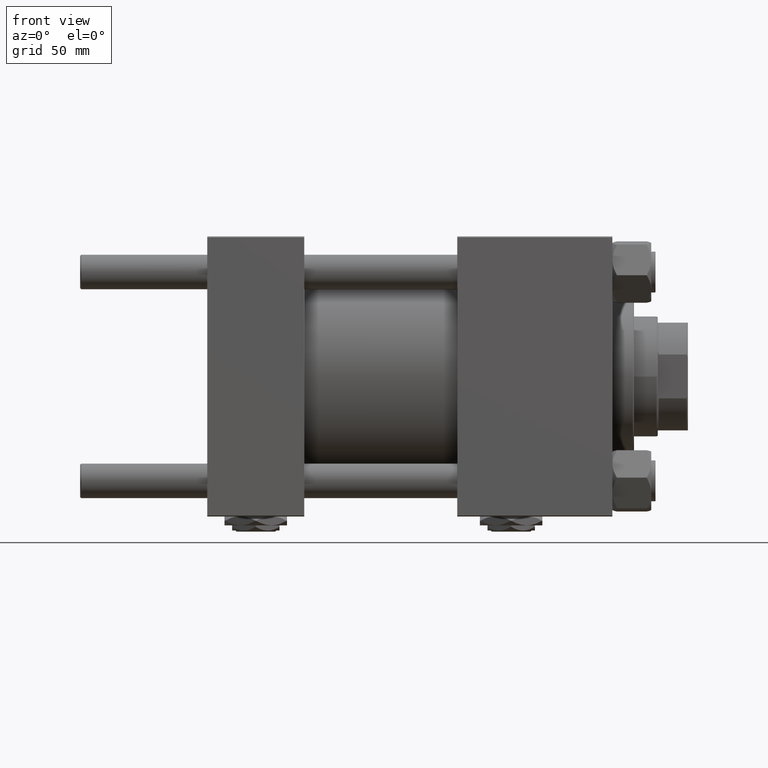
[diagram: clean part render]
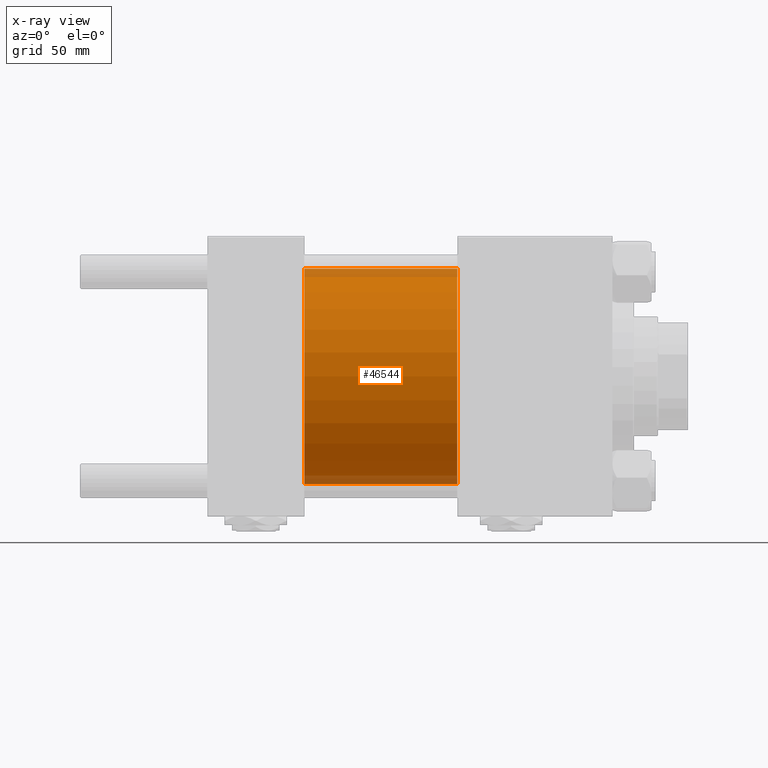
[diagram: x-ray — body ghosted, one internal face saturated and labeled with its STEP entity id]
A machine part, front view, then the same camera in x-ray: the body is ghosted and one INTERNAL B-rep face — a face not visible from any outside direction — is saturated and labeled: STEP entity #46544.
In plain terms, the highlighted cylindrical surface (partial cylindrical patch) has radius 50 mm, axis along (-1, -0, -0).
Its self-contained STEP definition (entity closure, byte-faithful):
#495 = CIRCLE ( 'NONE', #30165, 50.00000000000000000 ) ;
#2635 = ORIENTED_EDGE ( 'NONE', *, *, #49078, .T. ) ;
#2639 = VERTEX_POINT ( 'NONE', #26550 ) ;
#3754 = CARTESIAN_POINT ( 'NONE',  ( 115.9999999999999858, 0.000000000000000000, 0.000000000000000000 ) ) ;
#4637 = CARTESIAN_POINT ( 'NONE',  ( 115.9999999999999858, 0.000000000000000000, 50.00000000000000000 ) ) ;
#4969 = EDGE_LOOP ( 'NONE', ( #29081, #2635, #19232, #7942 ) ) ;
#5120 = AXIS2_PLACEMENT_3D ( 'NONE', #34658, #47392, #27204 ) ;
#6209 = CARTESIAN_POINT ( 'NONE',  ( 115.9999999999999858, 6.123233995736766085E-15, -50.00000000000000000 ) ) ;
#6868 = EDGE_CURVE ( 'NONE', #15997, #33586, #29043, .T. ) ;
#7942 = ORIENTED_EDGE ( 'NONE', *, *, #6868, .F. ) ;
#8273 = DIRECTION ( 'NONE',  ( -1.000000000000000000, -0.000000000000000000, -0.000000000000000000 ) ) ;
#8747 = EDGE_CURVE ( 'NONE', #33586, #2639, #495, .T. ) ;
#12875 = DIRECTION ( 'NONE',  ( 0.000000000000000000, 0.000000000000000000, -1.000000000000000000 ) ) ;
#14301 = LINE ( 'NONE', #37469, #49820 ) ;
#14467 = CIRCLE ( 'NONE', #5120, 50.00000000000000000 ) ;
#15535 = VERTEX_POINT ( 'NONE', #6209 ) ;
#15708 = CYLINDRICAL_SURFACE ( 'NONE', #33632, 50.00000000000000000 ) ;
#15997 = VERTEX_POINT ( 'NONE', #40025 ) ;
#19232 = ORIENTED_EDGE ( 'NONE', *, *, #8747, .F. ) ;
#20283 = DIRECTION ( 'NONE',  ( -1.000000000000000000, -0.000000000000000000, -0.000000000000000000 ) ) ;
#24439 = DIRECTION ( 'NONE',  ( 0.000000000000000000, 0.000000000000000000, 1.000000000000000000 ) ) ;
#25028 = EDGE_CURVE ( 'NONE', #15997, #15535, #14467, .T. ) ;
#25082 = CARTESIAN_POINT ( 'NONE',  ( 45.00000000000000000, 0.000000000000000000, 0.000000000000000000 ) ) ;
#26550 = CARTESIAN_POINT ( 'NONE',  ( 45.00000000000000000, 6.123233995736766085E-15, -50.00000000000000000 ) ) ;
#27204 = DIRECTION ( 'NONE',  ( 0.000000000000000000, 0.000000000000000000, -1.000000000000000000 ) ) ;
#28689 = FACE_OUTER_BOUND ( 'NONE', #4969, .T. ) ;
#29043 = LINE ( 'NONE', #4637, #49571 ) ;
#29081 = ORIENTED_EDGE ( 'NONE', *, *, #25028, .T. ) ;
#30165 = AXIS2_PLACEMENT_3D ( 'NONE', #25082, #48723, #12875 ) ;
#32700 = CARTESIAN_POINT ( 'NONE',  ( 45.00000000000000000, 0.000000000000000000, 50.00000000000000000 ) ) ;
#33586 = VERTEX_POINT ( 'NONE', #32700 ) ;
#33632 = AXIS2_PLACEMENT_3D ( 'NONE', #3754, #8273, #24439 ) ;
#34658 = CARTESIAN_POINT ( 'NONE',  ( 115.9999999999999858, 0.000000000000000000, 0.000000000000000000 ) ) ;
#37469 = CARTESIAN_POINT ( 'NONE',  ( 115.9999999999999858, 6.123233995736766085E-15, -50.00000000000000000 ) ) ;
#40025 = CARTESIAN_POINT ( 'NONE',  ( 115.9999999999999858, 0.000000000000000000, 50.00000000000000000 ) ) ;
#46544 = ADVANCED_FACE ( 'NONE', ( #28689 ), #15708, .F. ) ;
#47392 = DIRECTION ( 'NONE',  ( 1.000000000000000000, 0.000000000000000000, 0.000000000000000000 ) ) ;
#48723 = DIRECTION ( 'NONE',  ( 1.000000000000000000, 0.000000000000000000, 0.000000000000000000 ) ) ;
#49078 = EDGE_CURVE ( 'NONE', #15535, #2639, #14301, .T. ) ;
#49571 = VECTOR ( 'NONE', #20283, 1000.000000000000000 ) ;
#49820 = VECTOR ( 'NONE', #50932, 1000.000000000000000 ) ;
#50932 = DIRECTION ( 'NONE',  ( -1.000000000000000000, -0.000000000000000000, -0.000000000000000000 ) ) ;